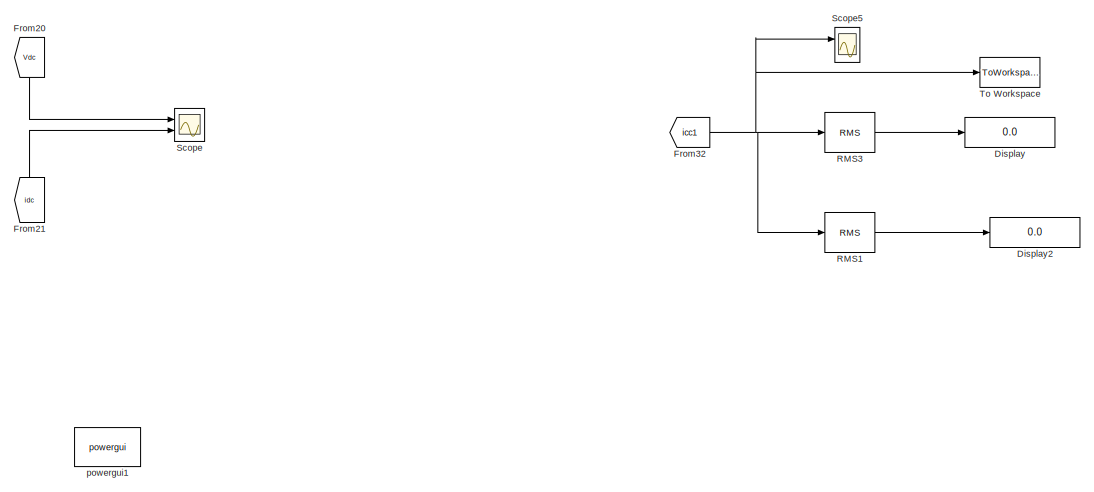
[diagram: root canvas - part 1/2, full width, top band]
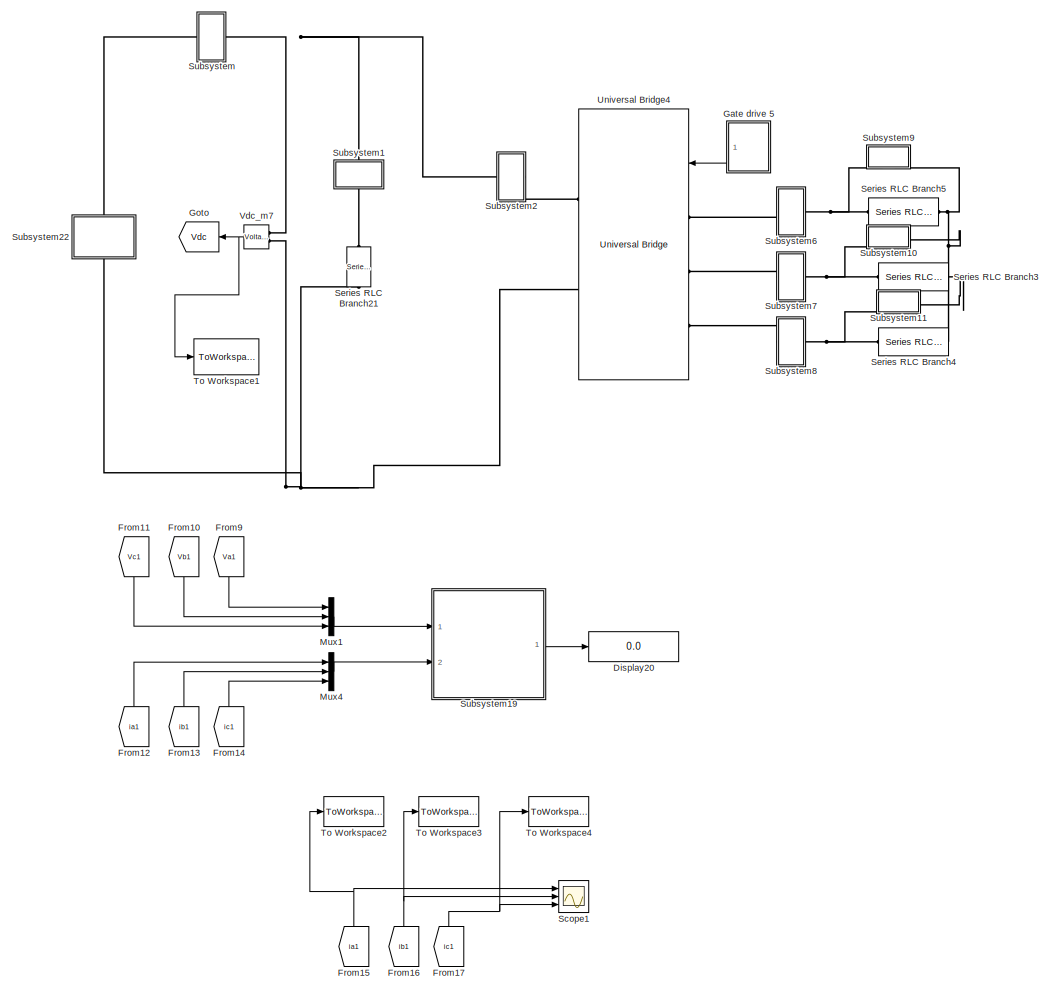
[diagram: root canvas - part 2/2, full width, bottom band]
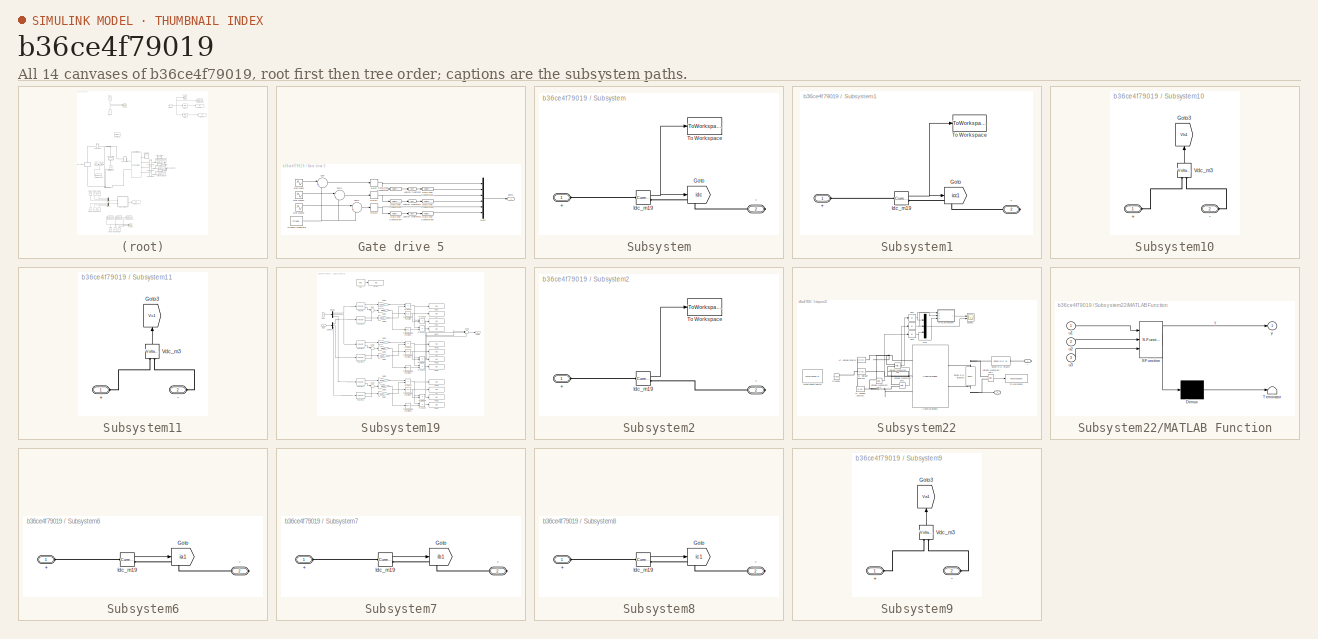
[diagram: thumbnail index - all 14 canvases of the model, root first then tree order]
MODEL slx_b36ce4f79019
KIND model
CONFIG AbsTol = auto
CONFIG FixedStep = Ts
CONFIG MaxStep = auto
CONFIG MinStep = auto
CONFIG RelTol = 1e-3
CONFIG SampleTimeConstraint = Unconstrained
CONFIG Solver = ode4
CONFIG SolverMode = Auto
CONFIG SolverName = ode4
CONFIG StartTime = 0.0
CONFIG StopTime = Tfinal
BLOCK [Display] Display
  Decimation = 1
  Ports = [1]
BLOCK [Display] Display2
  Decimation = 1
  Ports = [1]
BLOCK [Display] Display20
  Decimation = 1
  Ports = [1]
BLOCK [From] From10
  GotoTag = Vb1
  TagVisibility = global
BLOCK [From] From11
  GotoTag = Vc1
  TagVisibility = global
BLOCK [From] From12
  GotoTag = ia1
  TagVisibility = global
BLOCK [From] From13
  GotoTag = ib1
  TagVisibility = global
BLOCK [From] From14
  GotoTag = ic1
  TagVisibility = global
BLOCK [From] From15
  GotoTag = ia1
  TagVisibility = global
BLOCK [From] From16
  GotoTag = ib1
  TagVisibility = global
BLOCK [From] From17
  GotoTag = ic1
  TagVisibility = global
BLOCK [From] From20
  GotoTag = Vdc
  TagVisibility = global
BLOCK [From] From21
  GotoTag = idc
  TagVisibility = global
BLOCK [From] From32
  GotoTag = icc1
  TagVisibility = global
BLOCK [From] From9
  GotoTag = Va1
  TagVisibility = global
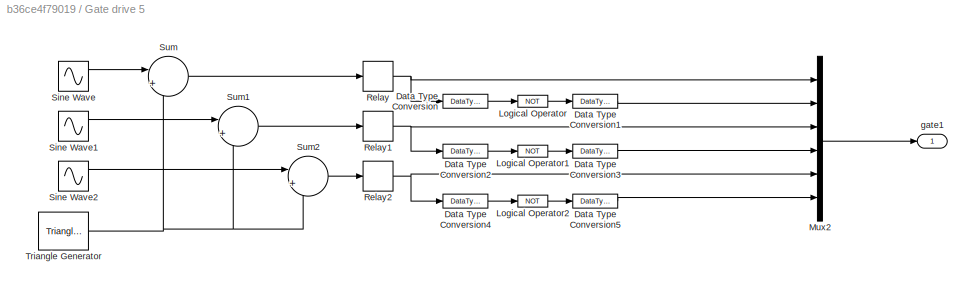
BLOCK [SubSystem] Gate drive 5
  Ports = [0, 1]
  RequestExecContextInheritance = off
  Variant = off
BLOCK [DataTypeConversion] Gate drive 5/Data Type Conversion
  OutDataTypeStr = boolean
  RndMeth = Floor
  SaturateOnIntegerOverflow = off
BLOCK [DataTypeConversion] Gate drive 5/Data Type Conversion1
  OutDataTypeStr = double
  RndMeth = Floor
  SaturateOnIntegerOverflow = off
BLOCK [DataTypeConversion] Gate drive 5/Data Type Conversion2
  OutDataTypeStr = boolean
  RndMeth = Floor
  SaturateOnIntegerOverflow = off
BLOCK [DataTypeConversion] Gate drive 5/Data Type Conversion3
  OutDataTypeStr = double
  RndMeth = Floor
  SaturateOnIntegerOverflow = off
BLOCK [DataTypeConversion] Gate drive 5/Data Type Conversion4
  OutDataTypeStr = boolean
  RndMeth = Floor
  SaturateOnIntegerOverflow = off
BLOCK [DataTypeConversion] Gate drive 5/Data Type Conversion5
  OutDataTypeStr = double
  RndMeth = Floor
  SaturateOnIntegerOverflow = off
BLOCK [Logic] Gate drive 5/Logical Operator
  AllPortsSameDT = off
  Operator = NOT
  OutDataTypeStr = boolean
  Ports = [1, 1]
BLOCK [Logic] Gate drive 5/Logical Operator1
  AllPortsSameDT = off
  Operator = NOT
  OutDataTypeStr = boolean
  Ports = [1, 1]
BLOCK [Logic] Gate drive 5/Logical Operator2
  AllPortsSameDT = off
  Operator = NOT
  OutDataTypeStr = boolean
  Ports = [1, 1]
BLOCK [Mux] Gate drive 5/Mux2
  DisplayOption = bar
  Inputs = 6
  Ports = [6, 1]
BLOCK [Relay] Gate drive 5/Relay
  InputProcessing = Elements as channels (sample based)
BLOCK [Relay] Gate drive 5/Relay1
  InputProcessing = Elements as channels (sample based)
BLOCK [Relay] Gate drive 5/Relay2
  InputProcessing = Elements as channels (sample based)
BLOCK [Sin] Gate drive 5/Sine Wave
  Amplitude = ma1
  Frequency = wout
  Phase = delta
  Ports = [0, 1]
  SampleTime = 0
BLOCK [Sin] Gate drive 5/Sine Wave1
  Amplitude = ma1
  Frequency = wout
  Phase = -2*pi/3+delta
  Ports = [0, 1]
  SampleTime = 0
BLOCK [Sin] Gate drive 5/Sine Wave2
  Amplitude = ma1
  Frequency = wout
  Phase = 2*pi/3+delta
  Ports = [0, 1]
  SampleTime = 0
BLOCK [Sum] Gate drive 5/Sum
  IconShape = round
  InputSameDT = off
  Inputs = |+-
  OutDataTypeStr = Inherit: Inherit via internal rule
  Ports = [2, 1]
  SaturateOnIntegerOverflow = off
BLOCK [Sum] Gate drive 5/Sum1
  IconShape = round
  InputSameDT = off
  Inputs = |+-
  OutDataTypeStr = Inherit: Inherit via internal rule
  Ports = [2, 1]
  SaturateOnIntegerOverflow = off
BLOCK [Sum] Gate drive 5/Sum2
  IconShape = round
  InputSameDT = off
  Inputs = |+-
  OutDataTypeStr = Inherit: Inherit via internal rule
  Ports = [2, 1]
  SaturateOnIntegerOverflow = off
BLOCK [Reference] Gate drive 5/Triangle Generator  REF=powerlib_meascontrol/Pulse & Signal
Generators/Triangle
Generator
  Ports = [0, 1]
  SourceBlock = powerlib_meascontrol/Pulse & Signal\nGenerators/Triangle\nGenerator
  SourceType = Triangle Generator
BLOCK [Outport] Gate drive 5/gate1
  IconDisplay = Port number
BLOCK [Goto] Goto
  GotoTag = Vdc
  TagVisibility = global
BLOCK [Mux] Mux1
  DisplayOption = bar
  Inputs = 3
  Ports = [3, 1]
BLOCK [Mux] Mux4
  DisplayOption = bar
  Inputs = 3
  Ports = [3, 1]
BLOCK [Reference] RMS1  REF=powerlib_meascontrol/Measurements/RMS
  Ports = [1, 1]
  SourceBlock = powerlib_meascontrol/Measurements/RMS
  SourceType = RMS
BLOCK [Reference] RMS3  REF=powerlib_meascontrol/Measurements/RMS
  Ports = [1, 1]
  SourceBlock = powerlib_meascontrol/Measurements/RMS
  SourceType = RMS
BLOCK [Scope] Scope
  NumInputPorts = 2
  Ports = [2]
  ScopeSpecificationString = Simulink.scopes.TimeScopeBlockCfg('CurrentConfiguration', extmgr.ConfigurationSet(extmgr.Configuration('Core','General UI',true),extmgr.Configuration('Core','Source UI',true),extmgr.Configuration('Sources','WiredSimulink',true,'DataLoggingVariableName','ScopeData1'),extmgr.Configuration('Visuals','Time Domain',true,'SerializedDisplays',{struct('MinYLimReal','219.15065','MaxYLimReal','272.62281','Y...<+1463ch>
BLOCK [Scope] Scope1
  NumInputPorts = 3
  Ports = [3]
  ScopeSpecificationString = Simulink.scopes.TimeScopeBlockCfg('CurrentConfiguration', extmgr.ConfigurationSet(extmgr.Configuration('Core','General UI',true),extmgr.Configuration('Core','Source UI',true),extmgr.Configuration('Sources','WiredSimulink',true,'DataLoggingVariableName','ScopeData1'),extmgr.Configuration('Visuals','Time Domain',true,'SerializedDisplays',{struct('MinYLimReal','-15.94755','MaxYLimReal','13.05251','YL...<+1441ch>
BLOCK [Scope] Scope5
  NumInputPorts = 2
  Ports = [2]
  ScopeSpecificationString = Simulink.scopes.TimeScopeBlockCfg('CurrentConfiguration', extmgr.ConfigurationSet(extmgr.Configuration('Core','General UI',true),extmgr.Configuration('Core','Source UI',true),extmgr.Configuration('Sources','WiredSimulink',true,'DataLoggingVariableName','ScopeData4'),extmgr.Configuration('Visuals','Time Domain',true,'SerializedDisplays',{struct('MinYLimReal','-40.78372','MaxYLimReal','24.3022','YLa...<+1455ch>
BLOCK [Reference] Series RLC Branch21  REF=powerlib/Elements/Series RLC Branch
  Ports = [0, 0, 0, 0, 0, 1, 1]
  SourceBlock = powerlib/Elements/Series RLC Branch
  SourceType = Series RLC Branch
BLOCK [Reference] Series RLC Branch3  REF=powerlib/Elements/Series RLC Branch
  Ports = [0, 0, 0, 0, 0, 1, 1]
  SourceBlock = powerlib/Elements/Series RLC Branch
  SourceType = Series RLC Branch
BLOCK [Reference] Series RLC Branch4  REF=powerlib/Elements/Series RLC Branch
  Ports = [0, 0, 0, 0, 0, 1, 1]
  SourceBlock = powerlib/Elements/Series RLC Branch
  SourceType = Series RLC Branch
BLOCK [Reference] Series RLC Branch5  REF=powerlib/Elements/Series RLC Branch
  Ports = [0, 0, 0, 0, 0, 1, 1]
  SourceBlock = powerlib/Elements/Series RLC Branch
  SourceType = Series RLC Branch
BLOCK [SubSystem] Subsystem
  Ports = [0, 0, 0, 0, 0, 1, 1]
  RequestExecContextInheritance = off
  Variant = off
BLOCK [PMIOPort] Subsystem/ -
  Port = 2
  Side = Right
BLOCK [PMIOPort] Subsystem/+
  Port = 1
  Side = Left
BLOCK [Goto] Subsystem/Goto
  GotoTag = idc
  TagVisibility = global
BLOCK [Reference] Subsystem/Idc_m19  REF=powerlib/Measurements/Current Measurement
  Ports = [0, 1, 0, 0, 0, 1, 1]
  SourceBlock = powerlib/Measurements/Current Measurement
  SourceType = Current Measurement
BLOCK [ToWorkspace] Subsystem/To Workspace
  FixptAsFi = on
  MaxDataPoints = inf
  Ports = [1]
  SampleTime = -1
  Save2DSignal = 3-D array (concatenate along third dimension)
  VariableName = InputCurrent_sim
BLOCK [SubSystem] Subsystem1
  Ports = [0, 0, 0, 0, 0, 1, 1]
  RequestExecContextInheritance = off
  Variant = off
BLOCK [PMIOPort] Subsystem1/ -
  Port = 2
  Side = Right
BLOCK [PMIOPort] Subsystem1/+
  Port = 1
  Side = Left
BLOCK [Goto] Subsystem1/Goto
  GotoTag = icc1
  TagVisibility = global
BLOCK [Reference] Subsystem1/Idc_m19  REF=powerlib/Measurements/Current Measurement
  Ports = [0, 1, 0, 0, 0, 1, 1]
  SourceBlock = powerlib/Measurements/Current Measurement
  SourceType = Current Measurement
BLOCK [ToWorkspace] Subsystem1/To Workspace
  FixptAsFi = on
  MaxDataPoints = inf
  Ports = [1]
  SampleTime = -1
  Save2DSignal = 3-D array (concatenate along third dimension)
  SaveFormat = Timeseries
  VariableName = currentCap_sim
BLOCK [SubSystem] Subsystem10
  Ports = [0, 0, 0, 0, 0, 2]
  RequestExecContextInheritance = off
  Variant = off
BLOCK [PMIOPort] Subsystem10/+
  Port = 1
  Side = Left
BLOCK [PMIOPort] Subsystem10/-
  Port = 2
  Side = Left
BLOCK [Goto] Subsystem10/Goto3
  GotoTag = Vb1
  TagVisibility = global
BLOCK [Reference] Subsystem10/Vdc_m3  REF=powerlib/Measurements/Voltage Measurement
  Ports = [0, 1, 0, 0, 0, 2]
  SourceBlock = powerlib/Measurements/Voltage Measurement
  SourceType = Voltage Measurement
BLOCK [SubSystem] Subsystem11
  Ports = [0, 0, 0, 0, 0, 2]
  RequestExecContextInheritance = off
  Variant = off
BLOCK [PMIOPort] Subsystem11/+
  Port = 1
  Side = Left
BLOCK [PMIOPort] Subsystem11/-
  Port = 2
  Side = Left
BLOCK [Goto] Subsystem11/Goto3
  GotoTag = Vc1
  TagVisibility = global
BLOCK [Reference] Subsystem11/Vdc_m3  REF=powerlib/Measurements/Voltage Measurement
  Ports = [0, 1, 0, 0, 0, 2]
  SourceBlock = powerlib/Measurements/Voltage Measurement
  SourceType = Voltage Measurement
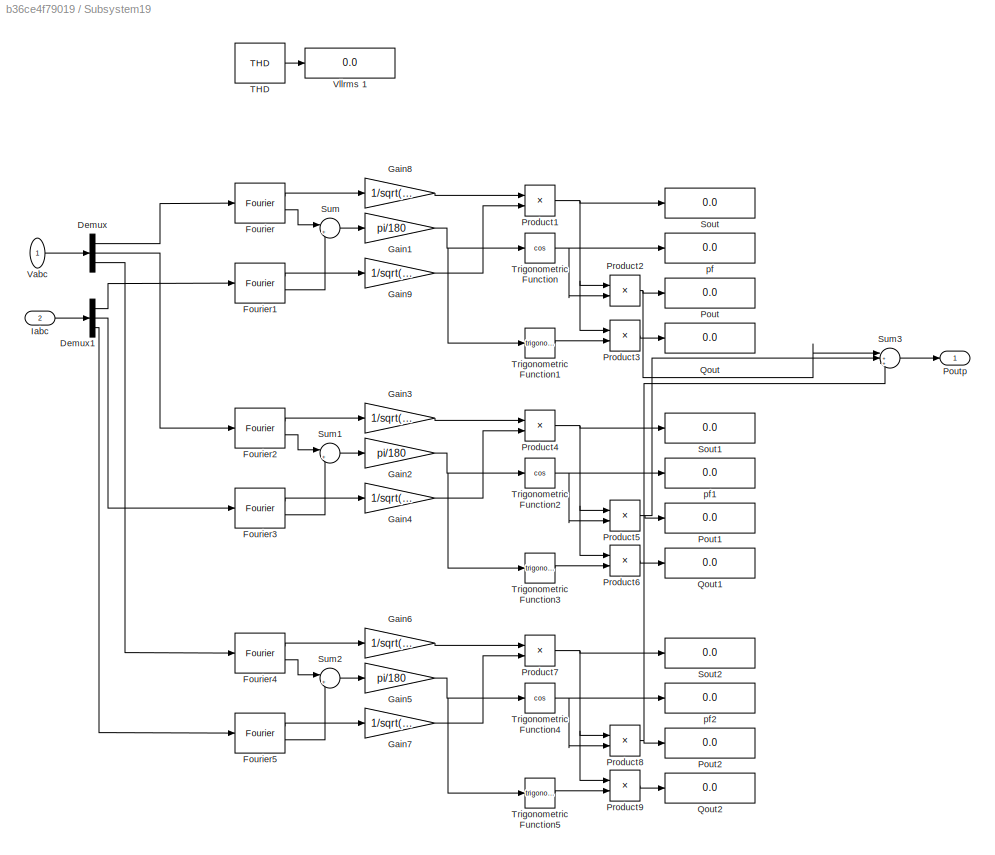
BLOCK [SubSystem] Subsystem19
  Ports = [2, 1]
  RequestExecContextInheritance = off
  Variant = off
BLOCK [Demux] Subsystem19/Demux
  DisplayOption = bar
  Outputs = 3
  Ports = [1, 3]
BLOCK [Demux] Subsystem19/Demux1
  DisplayOption = bar
  Outputs = 3
  Ports = [1, 3]
BLOCK [Reference] Subsystem19/Fourier  REF=powerlib_meascontrol/Measurements/Fourier
  Ports = [1, 2]
  SourceBlock = powerlib_meascontrol/Measurements/Fourier
  SourceType = Fourier
BLOCK [Reference] Subsystem19/Fourier1  REF=powerlib_meascontrol/Measurements/Fourier
  Ports = [1, 2]
  SourceBlock = powerlib_meascontrol/Measurements/Fourier
  SourceType = Fourier
BLOCK [Reference] Subsystem19/Fourier2  REF=powerlib_meascontrol/Measurements/Fourier
  Ports = [1, 2]
  SourceBlock = powerlib_meascontrol/Measurements/Fourier
  SourceType = Fourier
BLOCK [Reference] Subsystem19/Fourier3  REF=powerlib_meascontrol/Measurements/Fourier
  Ports = [1, 2]
  SourceBlock = powerlib_meascontrol/Measurements/Fourier
  SourceType = Fourier
BLOCK [Reference] Subsystem19/Fourier4  REF=powerlib_meascontrol/Measurements/Fourier
  Ports = [1, 2]
  SourceBlock = powerlib_meascontrol/Measurements/Fourier
  SourceType = Fourier
BLOCK [Reference] Subsystem19/Fourier5  REF=powerlib_meascontrol/Measurements/Fourier
  Ports = [1, 2]
  SourceBlock = powerlib_meascontrol/Measurements/Fourier
  SourceType = Fourier
BLOCK [Gain] Subsystem19/Gain1
  Gain = pi/180
  OutDataTypeStr = Inherit: Inherit via internal rule
  ParamDataTypeStr = Inherit: Inherit via internal rule
  SaturateOnIntegerOverflow = off
BLOCK [Gain] Subsystem19/Gain2
  Gain = pi/180
  OutDataTypeStr = Inherit: Inherit via internal rule
  ParamDataTypeStr = Inherit: Inherit via internal rule
  SaturateOnIntegerOverflow = off
BLOCK [Gain] Subsystem19/Gain3
  Gain = 1/sqrt(2)
  OutDataTypeStr = Inherit: Inherit via internal rule
  ParamDataTypeStr = Inherit: Inherit via internal rule
  SaturateOnIntegerOverflow = off
BLOCK [Gain] Subsystem19/Gain4
  Gain = 1/sqrt(2)
  OutDataTypeStr = Inherit: Inherit via internal rule
  ParamDataTypeStr = Inherit: Inherit via internal rule
  SaturateOnIntegerOverflow = off
BLOCK [Gain] Subsystem19/Gain5
  Gain = pi/180
  OutDataTypeStr = Inherit: Inherit via internal rule
  ParamDataTypeStr = Inherit: Inherit via internal rule
  SaturateOnIntegerOverflow = off
BLOCK [Gain] Subsystem19/Gain6
  Gain = 1/sqrt(2)
  OutDataTypeStr = Inherit: Inherit via internal rule
  ParamDataTypeStr = Inherit: Inherit via internal rule
  SaturateOnIntegerOverflow = off
BLOCK [Gain] Subsystem19/Gain7
  Gain = 1/sqrt(2)
  OutDataTypeStr = Inherit: Inherit via internal rule
  ParamDataTypeStr = Inherit: Inherit via internal rule
  SaturateOnIntegerOverflow = off
BLOCK [Gain] Subsystem19/Gain8
  Gain = 1/sqrt(2)
  OutDataTypeStr = Inherit: Inherit via internal rule
  ParamDataTypeStr = Inherit: Inherit via internal rule
  SaturateOnIntegerOverflow = off
BLOCK [Gain] Subsystem19/Gain9
  Gain = 1/sqrt(2)
  OutDataTypeStr = Inherit: Inherit via internal rule
  ParamDataTypeStr = Inherit: Inherit via internal rule
  SaturateOnIntegerOverflow = off
BLOCK [Inport] Subsystem19/Iabc
  IconDisplay = Port number
  Port = 2
BLOCK [Display] Subsystem19/Pout
  Decimation = 1
  Ports = [1]
BLOCK [Display] Subsystem19/Pout1
  Decimation = 1
  Ports = [1]
BLOCK [Display] Subsystem19/Pout2
  Decimation = 1
  Ports = [1]
BLOCK [Outport] Subsystem19/Poutp
  IconDisplay = Port number
BLOCK [Product] Subsystem19/Product1
  InputSameDT = off
  OutDataTypeStr = Inherit: Inherit via internal rule
  Ports = [2, 1]
  RndMeth = Floor
  SaturateOnIntegerOverflow = off
BLOCK [Product] Subsystem19/Product2
  InputSameDT = off
  OutDataTypeStr = Inherit: Inherit via internal rule
  Ports = [2, 1]
  RndMeth = Floor
  SaturateOnIntegerOverflow = off
BLOCK [Product] Subsystem19/Product3
  InputSameDT = off
  OutDataTypeStr = Inherit: Inherit via internal rule
  Ports = [2, 1]
  RndMeth = Floor
  SaturateOnIntegerOverflow = off
BLOCK [Product] Subsystem19/Product4
  InputSameDT = off
  OutDataTypeStr = Inherit: Inherit via internal rule
  Ports = [2, 1]
  RndMeth = Floor
  SaturateOnIntegerOverflow = off
BLOCK [Product] Subsystem19/Product5
  InputSameDT = off
  OutDataTypeStr = Inherit: Inherit via internal rule
  Ports = [2, 1]
  RndMeth = Floor
  SaturateOnIntegerOverflow = off
BLOCK [Product] Subsystem19/Product6
  InputSameDT = off
  OutDataTypeStr = Inherit: Inherit via internal rule
  Ports = [2, 1]
  RndMeth = Floor
  SaturateOnIntegerOverflow = off
BLOCK [Product] Subsystem19/Product7
  InputSameDT = off
  OutDataTypeStr = Inherit: Inherit via internal rule
  Ports = [2, 1]
  RndMeth = Floor
  SaturateOnIntegerOverflow = off
BLOCK [Product] Subsystem19/Product8
  InputSameDT = off
  OutDataTypeStr = Inherit: Inherit via internal rule
  Ports = [2, 1]
  RndMeth = Floor
  SaturateOnIntegerOverflow = off
BLOCK [Product] Subsystem19/Product9
  InputSameDT = off
  OutDataTypeStr = Inherit: Inherit via internal rule
  Ports = [2, 1]
  RndMeth = Floor
  SaturateOnIntegerOverflow = off
BLOCK [Display] Subsystem19/Qout
  Decimation = 1
  Ports = [1]
BLOCK [Display] Subsystem19/Qout1
  Decimation = 1
  Ports = [1]
BLOCK [Display] Subsystem19/Qout2
  Decimation = 1
  Ports = [1]
BLOCK [Display] Subsystem19/Sout
  Decimation = 1
  Format = short_e
  Ports = [1]
BLOCK [Display] Subsystem19/Sout1
  Decimation = 1
  Format = short_e
  Ports = [1]
BLOCK [Display] Subsystem19/Sout2
  Decimation = 1
  Format = short_e
  Ports = [1]
BLOCK [Sum] Subsystem19/Sum
  IconShape = round
  InputSameDT = off
  Inputs = |+-
  OutDataTypeStr = Inherit: Inherit via internal rule
  Ports = [2, 1]
  SaturateOnIntegerOverflow = off
BLOCK [Sum] Subsystem19/Sum1
  IconShape = round
  InputSameDT = off
  Inputs = |+-
  OutDataTypeStr = Inherit: Inherit via internal rule
  Ports = [2, 1]
  SaturateOnIntegerOverflow = off
BLOCK [Sum] Subsystem19/Sum2
  IconShape = round
  InputSameDT = off
  Inputs = |+-
  OutDataTypeStr = Inherit: Inherit via internal rule
  Ports = [2, 1]
  SaturateOnIntegerOverflow = off
BLOCK [Sum] Subsystem19/Sum3
  IconShape = round
  InputSameDT = off
  Inputs = |+++
  OutDataTypeStr = Inherit: Inherit via internal rule
  Ports = [3, 1]
  SaturateOnIntegerOverflow = off
BLOCK [Reference] Subsystem19/THD  REF=powerlib_meascontrol/Measurements/THD
  Ports = [1, 1]
  SourceBlock = powerlib_meascontrol/Measurements/THD
  SourceType = THD
BLOCK [Trigonometry] Subsystem19/Trigonometric Function
  Operator = cos
  Ports = [1, 1]
BLOCK [Trigonometry] Subsystem19/Trigonometric Function1
  Ports = [1, 1]
BLOCK [Trigonometry] Subsystem19/Trigonometric Function2
  Operator = cos
  Ports = [1, 1]
BLOCK [Trigonometry] Subsystem19/Trigonometric Function3
  Ports = [1, 1]
BLOCK [Trigonometry] Subsystem19/Trigonometric Function4
  Operator = cos
  Ports = [1, 1]
BLOCK [Trigonometry] Subsystem19/Trigonometric Function5
  Ports = [1, 1]
BLOCK [Inport] Subsystem19/Vabc
  IconDisplay = Port number
BLOCK [Display] Subsystem19/Vllrms 1
  Decimation = 1
  Ports = [1]
BLOCK [Display] Subsystem19/pf
  Decimation = 1
  Ports = [1]
BLOCK [Display] Subsystem19/pf1
  Decimation = 1
  Ports = [1]
BLOCK [Display] Subsystem19/pf2
  Decimation = 1
  Ports = [1]
BLOCK [SubSystem] Subsystem2
  Ports = [0, 0, 0, 0, 0, 1, 1]
  RequestExecContextInheritance = off
  Variant = off
BLOCK [PMIOPort] Subsystem2/ -
  Port = 2
  Side = Right
BLOCK [PMIOPort] Subsystem2/+
  Port = 1
  Side = Left
BLOCK [Reference] Subsystem2/Idc_m19  REF=powerlib/Measurements/Current Measurement
  Ports = [0, 1, 0, 0, 0, 1, 1]
  SourceBlock = powerlib/Measurements/Current Measurement
  SourceType = Current Measurement
BLOCK [ToWorkspace] Subsystem2/To Workspace
  FixptAsFi = on
  MaxDataPoints = inf
  Ports = [1]
  SampleTime = -1
  Save2DSignal = 3-D array (concatenate along third dimension)
  SaveFormat = Timeseries
  VariableName = currentInverter_sim
BLOCK [SubSystem] Subsystem22
  Ports = [0, 0, 0, 0, 0, 1, 1]
  RequestExecContextInheritance = off
  Variant = off
BLOCK [PMIOPort] Subsystem22/+
  Port = 1
  Side = Right
BLOCK [PMIOPort] Subsystem22/-
  Port = 2
  Side = Left
BLOCK [Reference] Subsystem22/AC Voltage Source  REF=powerlib/Electrical
Sources/AC Voltage Source
  Ports = [0, 0, 0, 0, 0, 1, 1]
  SourceBlock = powerlib/Electrical\nSources/AC Voltage Source
  SourceType = AC Voltage Source
BLOCK [Reference] Subsystem22/AC Voltage Source2  REF=powerlib/Electrical
Sources/AC Voltage Source
  Ports = [0, 0, 0, 0, 0, 1, 1]
  SourceBlock = powerlib/Electrical\nSources/AC Voltage Source
  SourceType = AC Voltage Source
BLOCK [Reference] Subsystem22/AC Voltage Source3  REF=powerlib/Electrical
Sources/AC Voltage Source
  Ports = [0, 0, 0, 0, 0, 1, 1]
  SourceBlock = powerlib/Electrical\nSources/AC Voltage Source
  SourceType = AC Voltage Source
BLOCK [Abs] Subsystem22/Abs1
  SaturateOnIntegerOverflow = off
BLOCK [Abs] Subsystem22/Abs2
  SaturateOnIntegerOverflow = off
BLOCK [Abs] Subsystem22/Abs3
  SaturateOnIntegerOverflow = off
BLOCK [Reference] Subsystem22/Ground1  REF=powerlib/Elements/Ground
  Ports = [0, 0, 0, 0, 0, 1]
  SourceBlock = powerlib/Elements/Ground
  SourceType = Ground
BLOCK [SubSystem] Subsystem22/MATLAB Function
  ErrorFcn = Stateflow.Translate.translate
  PermitHierarchicalResolution = ExplicitOnly
  Ports = [3, 1]
  RequestExecContextInheritance = off
  SFBlockType = MATLAB Function
  TreatAsAtomicUnit = on
  Variant = off
BLOCK [Demux] Subsystem22/MATLAB Function/ Demux 
  Outputs = 1
  Ports = [1, 1]
BLOCK [S-Function] Subsystem22/MATLAB Function/ SFunction 
  EnableBusSupport = on
  FunctionName = sf_sfun
  PortCounts = [3 2]
  Ports = [3, 2]
  SFunctionDeploymentMode = off
  Tag = Stateflow S-Function VerificationSSMRec2016A 2
BLOCK [Terminator] Subsystem22/MATLAB Function/ Terminator 
BLOCK [Inport] Subsystem22/MATLAB Function/u1
  IconDisplay = Port number
BLOCK [Inport] Subsystem22/MATLAB Function/u2
  IconDisplay = Port number
  Port = 2
BLOCK [Inport] Subsystem22/MATLAB Function/u3
  IconDisplay = Port number
  Port = 3
BLOCK [Outport] Subsystem22/MATLAB Function/y
  IconDisplay = Port number
BLOCK [Mux] Subsystem22/Mux
  DisplayOption = bar
  Inputs = 3
  Ports = [3, 1]
BLOCK [Scope] Subsystem22/Scope1
  NumInputPorts = 2
  Ports = [2]
  ScopeSpecificationString = Simulink.scopes.TimeScopeBlockCfg('CurrentConfiguration', extmgr.ConfigurationSet(extmgr.Configuration('Core','General UI',true),extmgr.Configuration('Core','Source UI',true),extmgr.Configuration('Sources','WiredSimulink',true,'DataLoggingVariableName','ScopeData1'),extmgr.Configuration('Visuals','Time Domain',true,'SerializedDisplays',{struct('MinYLimReal','-16.25','MaxYLimReal','146.25','YLabelR...<+1439ch>
BLOCK [Reference] Subsystem22/Series RLC Branch  REF=powerlib/Elements/Series RLC Branch
  Ports = [0, 0, 0, 0, 0, 1, 1]
  SourceBlock = powerlib/Elements/Series RLC Branch
  SourceType = Series RLC Branch
BLOCK [Reference] Subsystem22/Series RLC Branch5  REF=powerlib/Elements/Series RLC Branch
  Ports = [0, 0, 0, 0, 0, 1, 1]
  SourceBlock = powerlib/Elements/Series RLC Branch
  SourceType = Series RLC Branch
BLOCK [Reference] Subsystem22/Three-Phase Source  REF=powerlib/Electrical
Sources/Three-Phase Source
  Commented = on
  Ports = [0, 0, 0, 0, 0, 0, 3]
  SourceBlock = powerlib/Electrical\nSources/Three-Phase Source
  SourceType = Three-Phase Source
BLOCK [ToWorkspace] Subsystem22/To Workspace
  FixptAsFi = on
  MaxDataPoints = inf
  Ports = [1]
  SampleTime = -1
  Save2DSignal = 3-D array (concatenate along third dimension)
  SaveFormat = Timeseries
  VariableName = InputVoltage_sim
BLOCK [Reference] Subsystem22/Universal Bridge1  REF=powerlib/Power
Electronics/Universal Bridge
  Ports = [0, 0, 0, 0, 0, 3, 2]
  SourceBlock = powerlib/Power\nElectronics/Universal Bridge
  SourceType = Universal Bridge
BLOCK [Reference] Subsystem22/Voltage Measurement  REF=powerlib/Measurements/Voltage Measurement
  Ports = [0, 1, 0, 0, 0, 2]
  SourceBlock = powerlib/Measurements/Voltage Measurement
  SourceType = Voltage Measurement
  UserDataPersistent = on
BLOCK [Reference] Subsystem22/Voltage Measurement1  REF=powerlib/Measurements/Voltage Measurement
  Ports = [0, 1, 0, 0, 0, 2]
  SourceBlock = powerlib/Measurements/Voltage Measurement
  SourceType = Voltage Measurement
  UserDataPersistent = on
BLOCK [Reference] Subsystem22/Voltage Measurement2  REF=powerlib/Measurements/Voltage Measurement
  Ports = [0, 1, 0, 0, 0, 2]
  SourceBlock = powerlib/Measurements/Voltage Measurement
  SourceType = Voltage Measurement
  UserDataPersistent = on
BLOCK [Reference] Subsystem22/Voltage Measurement3  REF=powerlib/Measurements/Voltage Measurement
  Ports = [0, 1, 0, 0, 0, 2]
  SourceBlock = powerlib/Measurements/Voltage Measurement
  SourceType = Voltage Measurement
  UserDataPersistent = on
BLOCK [SubSystem] Subsystem6
  Ports = [0, 0, 0, 0, 0, 1, 1]
  RequestExecContextInheritance = off
  Variant = off
BLOCK [PMIOPort] Subsystem6/ -
  Port = 2
  Side = Right
BLOCK [PMIOPort] Subsystem6/+
  Port = 1
  Side = Left
BLOCK [Goto] Subsystem6/Goto
  GotoTag = ia1
  TagVisibility = global
BLOCK [Reference] Subsystem6/Idc_m19  REF=powerlib/Measurements/Current Measurement
  Ports = [0, 1, 0, 0, 0, 1, 1]
  SourceBlock = powerlib/Measurements/Current Measurement
  SourceType = Current Measurement
BLOCK [SubSystem] Subsystem7
  Ports = [0, 0, 0, 0, 0, 1, 1]
  RequestExecContextInheritance = off
  Variant = off
BLOCK [PMIOPort] Subsystem7/ -
  Port = 2
  Side = Right
BLOCK [PMIOPort] Subsystem7/+
  Port = 1
  Side = Left
BLOCK [Goto] Subsystem7/Goto
  GotoTag = ib1
  TagVisibility = global
BLOCK [Reference] Subsystem7/Idc_m19  REF=powerlib/Measurements/Current Measurement
  Ports = [0, 1, 0, 0, 0, 1, 1]
  SourceBlock = powerlib/Measurements/Current Measurement
  SourceType = Current Measurement
BLOCK [SubSystem] Subsystem8
  Ports = [0, 0, 0, 0, 0, 1, 1]
  RequestExecContextInheritance = off
  Variant = off
BLOCK [PMIOPort] Subsystem8/ -
  Port = 2
  Side = Right
BLOCK [PMIOPort] Subsystem8/+
  Port = 1
  Side = Left
BLOCK [Goto] Subsystem8/Goto
  GotoTag = ic1
  TagVisibility = global
BLOCK [Reference] Subsystem8/Idc_m19  REF=powerlib/Measurements/Current Measurement
  Ports = [0, 1, 0, 0, 0, 1, 1]
  SourceBlock = powerlib/Measurements/Current Measurement
  SourceType = Current Measurement
BLOCK [SubSystem] Subsystem9
  Ports = [0, 0, 0, 0, 0, 2]
  RequestExecContextInheritance = off
  Variant = off
BLOCK [PMIOPort] Subsystem9/+
  Port = 1
  Side = Left
BLOCK [PMIOPort] Subsystem9/-
  Port = 2
  Side = Left
BLOCK [Goto] Subsystem9/Goto3
  GotoTag = Va1
  TagVisibility = global
BLOCK [Reference] Subsystem9/Vdc_m3  REF=powerlib/Measurements/Voltage Measurement
  Ports = [0, 1, 0, 0, 0, 2]
  SourceBlock = powerlib/Measurements/Voltage Measurement
  SourceType = Voltage Measurement
BLOCK [ToWorkspace] To Workspace
  FixptAsFi = on
  MaxDataPoints = inf
  Ports = [1]
  SampleTime = -1
  Save2DSignal = 3-D array (concatenate along third dimension)
  SaveFormat = Timeseries
  VariableName = ic
BLOCK [ToWorkspace] To Workspace1
  FixptAsFi = on
  MaxDataPoints = inf
  Ports = [1]
  SampleTime = -1
  Save2DSignal = 3-D array (concatenate along third dimension)
  SaveFormat = Timeseries
  VariableName = CapacitorVoltage_sim
BLOCK [ToWorkspace] To Workspace2
  FixptAsFi = on
  MaxDataPoints = inf
  Ports = [1]
  SampleTime = -1
  Save2DSignal = 3-D array (concatenate along third dimension)
  SaveFormat = Timeseries
  VariableName = currentPhaseA_sim
BLOCK [ToWorkspace] To Workspace3
  FixptAsFi = on
  MaxDataPoints = inf
  Ports = [1]
  SampleTime = -1
  Save2DSignal = 3-D array (concatenate along third dimension)
  SaveFormat = Timeseries
  VariableName = currentPhaseB_sim
BLOCK [ToWorkspace] To Workspace4
  FixptAsFi = on
  MaxDataPoints = inf
  Ports = [1]
  SampleTime = -1
  Save2DSignal = 3-D array (concatenate along third dimension)
  SaveFormat = Timeseries
  VariableName = currentPhaseC_sim
BLOCK [Reference] Universal Bridge4  REF=powerlib/Power
Electronics/Universal Bridge
  Ports = [1, 0, 0, 0, 0, 3, 2]
  SourceBlock = powerlib/Power\nElectronics/Universal Bridge
  SourceType = Universal Bridge
BLOCK [Reference] Vdc_m7  REF=powerlib/Measurements/Voltage Measurement
  Ports = [0, 1, 0, 0, 0, 2]
  SourceBlock = powerlib/Measurements/Voltage Measurement
  SourceType = Voltage Measurement
BLOCK [Reference] powergui1  REF=powerlib/powergui
  Ports = []
  Priority = 1
  SourceBlock = powerlib/powergui
  SourceType = PSB option menu block
LINE From10:1 -> Mux1:2
LINE From11:1 -> Mux1:3
LINE From12:1 -> Mux4:1
LINE From13:1 -> Mux4:2
LINE From14:1 -> Mux4:3
NET From15:1 -> Scope1:1, To Workspace2:1
NET From16:1 -> Scope1:2, To Workspace3:1
NET From17:1 -> Scope1:3, To Workspace4:1
LINE From20:1 -> Scope:1
LINE From21:1 -> Scope:2
NET From32:1 -> RMS1:1, RMS3:1, Scope5:1, To Workspace:1
LINE From9:1 -> Mux1:1
LINE Gate drive 5/Data Type Conversion1:1 -> Gate drive 5/Mux2:2
LINE Gate drive 5/Data Type Conversion2:1 -> Gate drive 5/Logical Operator1:1
LINE Gate drive 5/Data Type Conversion3:1 -> Gate drive 5/Mux2:4
LINE Gate drive 5/Data Type Conversion4:1 -> Gate drive 5/Logical Operator2:1
LINE Gate drive 5/Data Type Conversion5:1 -> Gate drive 5/Mux2:6
LINE Gate drive 5/Data Type Conversion:1 -> Gate drive 5/Logical Operator:1
LINE Gate drive 5/Logical Operator1:1 -> Gate drive 5/Data Type Conversion3:1
LINE Gate drive 5/Logical Operator2:1 -> Gate drive 5/Data Type Conversion5:1
LINE Gate drive 5/Logical Operator:1 -> Gate drive 5/Data Type Conversion1:1
LINE Gate drive 5/Mux2:1 -> Gate drive 5/gate1:1
NET Gate drive 5/Relay1:1 -> Gate drive 5/Data Type Conversion2:1, Gate drive 5/Mux2:3
NET Gate drive 5/Relay2:1 -> Gate drive 5/Data Type Conversion4:1, Gate drive 5/Mux2:5
NET Gate drive 5/Relay:1 -> Gate drive 5/Data Type Conversion:1, Gate drive 5/Mux2:1
LINE Gate drive 5/Sine Wave1:1 -> Gate drive 5/Sum1:1
LINE Gate drive 5/Sine Wave2:1 -> Gate drive 5/Sum2:1
LINE Gate drive 5/Sine Wave:1 -> Gate drive 5/Sum:1
LINE Gate drive 5/Sum1:1 -> Gate drive 5/Relay1:1
LINE Gate drive 5/Sum2:1 -> Gate drive 5/Relay2:1
LINE Gate drive 5/Sum:1 -> Gate drive 5/Relay:1
NET Gate drive 5/Triangle Generator:1 -> Gate drive 5/Sum1:2, Gate drive 5/Sum2:2, Gate drive 5/Sum:2
LINE Gate drive 5:1 -> Universal Bridge4:1
LINE Mux1:1 -> Subsystem19:1
LINE Mux4:1 -> Subsystem19:2
LINE RMS1:1 -> Display2:1
LINE RMS3:1 -> Display:1
NET Subsystem/Idc_m19:1 -> Subsystem/Goto:1, Subsystem/To Workspace:1
NET Subsystem1/Idc_m19:1 -> Subsystem1/Goto:1, Subsystem1/To Workspace:1
LINE Subsystem10/Vdc_m3:1 -> Subsystem10/Goto3:1
LINE Subsystem11/Vdc_m3:1 -> Subsystem11/Goto3:1
LINE Subsystem19/Demux1:1 -> Subsystem19/Fourier1:1
LINE Subsystem19/Demux1:2 -> Subsystem19/Fourier3:1
LINE Subsystem19/Demux1:3 -> Subsystem19/Fourier5:1
LINE Subsystem19/Demux:1 -> Subsystem19/Fourier:1
LINE Subsystem19/Demux:2 -> Subsystem19/Fourier2:1
LINE Subsystem19/Demux:3 -> Subsystem19/Fourier4:1
LINE Subsystem19/Fourier1:1 -> Subsystem19/Gain9:1
LINE Subsystem19/Fourier1:2 -> Subsystem19/Sum:2
LINE Subsystem19/Fourier2:1 -> Subsystem19/Gain3:1
LINE Subsystem19/Fourier2:2 -> Subsystem19/Sum1:1
LINE Subsystem19/Fourier3:1 -> Subsystem19/Gain4:1
LINE Subsystem19/Fourier3:2 -> Subsystem19/Sum1:2
LINE Subsystem19/Fourier4:1 -> Subsystem19/Gain6:1
LINE Subsystem19/Fourier4:2 -> Subsystem19/Sum2:1
LINE Subsystem19/Fourier5:1 -> Subsystem19/Gain7:1
LINE Subsystem19/Fourier5:2 -> Subsystem19/Sum2:2
LINE Subsystem19/Fourier:1 -> Subsystem19/Gain8:1
LINE Subsystem19/Fourier:2 -> Subsystem19/Sum:1
NET Subsystem19/Gain1:1 -> Subsystem19/Trigonometric Function1:1, Subsystem19/Trigonometric Function:1
NET Subsystem19/Gain2:1 -> Subsystem19/Trigonometric Function2:1, Subsystem19/Trigonometric Function3:1
LINE Subsystem19/Gain3:1 -> Subsystem19/Product4:1
LINE Subsystem19/Gain4:1 -> Subsystem19/Product4:2
NET Subsystem19/Gain5:1 -> Subsystem19/Trigonometric Function4:1, Subsystem19/Trigonometric Function5:1
LINE Subsystem19/Gain6:1 -> Subsystem19/Product7:1
LINE Subsystem19/Gain7:1 -> Subsystem19/Product7:2
LINE Subsystem19/Gain8:1 -> Subsystem19/Product1:1
LINE Subsystem19/Gain9:1 -> Subsystem19/Product1:2
LINE Subsystem19/Iabc:1 -> Subsystem19/Demux1:1
NET Subsystem19/Product1:1 -> Subsystem19/Product2:1, Subsystem19/Product3:1, Subsystem19/Sout:1
NET Subsystem19/Product2:1 -> Subsystem19/Pout:1, Subsystem19/Sum3:1
LINE Subsystem19/Product3:1 -> Subsystem19/Qout:1
NET Subsystem19/Product4:1 -> Subsystem19/Product5:1, Subsystem19/Product6:1, Subsystem19/Sout1:1
NET Subsystem19/Product5:1 -> Subsystem19/Pout1:1, Subsystem19/Sum3:2
LINE Subsystem19/Product6:1 -> Subsystem19/Qout1:1
NET Subsystem19/Product7:1 -> Subsystem19/Product8:1, Subsystem19/Product9:1, Subsystem19/Sout2:1
NET Subsystem19/Product8:1 -> Subsystem19/Pout2:1, Subsystem19/Sum3:3
LINE Subsystem19/Product9:1 -> Subsystem19/Qout2:1
LINE Subsystem19/Sum1:1 -> Subsystem19/Gain2:1
LINE Subsystem19/Sum2:1 -> Subsystem19/Gain5:1
LINE Subsystem19/Sum3:1 -> Subsystem19/Poutp:1
LINE Subsystem19/Sum:1 -> Subsystem19/Gain1:1
LINE Subsystem19/THD:1 -> Subsystem19/Vllrms 1:1
LINE Subsystem19/Trigonometric Function1:1 -> Subsystem19/Product3:2
NET Subsystem19/Trigonometric Function2:1 -> Subsystem19/Product5:2, Subsystem19/pf1:1
LINE Subsystem19/Trigonometric Function3:1 -> Subsystem19/Product6:2
NET Subsystem19/Trigonometric Function4:1 -> Subsystem19/Product8:2, Subsystem19/pf2:1
LINE Subsystem19/Trigonometric Function5:1 -> Subsystem19/Product9:2
NET Subsystem19/Trigonometric Function:1 -> Subsystem19/Product2:2, Subsystem19/pf:1
LINE Subsystem19/Vabc:1 -> Subsystem19/Demux:1
LINE Subsystem19:1 -> Display20:1
LINE Subsystem2/Idc_m19:1 -> Subsystem2/To Workspace:1
NET Subsystem22/Abs1:1 -> Subsystem22/MATLAB Function:1, Subsystem22/Mux:1
NET Subsystem22/Abs2:1 -> Subsystem22/MATLAB Function:2, Subsystem22/Mux:2
NET Subsystem22/Abs3:1 -> Subsystem22/MATLAB Function:3, Subsystem22/Mux:3
LINE Subsystem22/MATLAB Function:1 -> Subsystem22/Scope1:1
LINE Subsystem22/Mux:1 -> Subsystem22/Scope1:2
LINE Subsystem22/Voltage Measurement1:1 -> Subsystem22/To Workspace:1
LINE Subsystem22/Voltage Measurement2:1 -> Subsystem22/Abs2:1
LINE Subsystem22/Voltage Measurement3:1 -> Subsystem22/Abs3:1
LINE Subsystem22/Voltage Measurement:1 -> Subsystem22/Abs1:1
LINE Subsystem6/Idc_m19:1 -> Subsystem6/Goto:1
LINE Subsystem7/Idc_m19:1 -> Subsystem7/Goto:1
LINE Subsystem8/Idc_m19:1 -> Subsystem8/Goto:1
LINE Subsystem9/Vdc_m3:1 -> Subsystem9/Goto3:1
NET Vdc_m7:1 -> Goto:1, To Workspace1:1
PLINE Series RLC Branch21:LConn1 -- Subsystem1:RConn1
PNET net1: Series RLC Branch21:RConn1 -- Subsystem22:LConn1 -- Universal Bridge4:RConn2 -- Vdc_m7:LConn2
PNET net2: Series RLC Branch3:LConn1 -- Subsystem10:LConn1 -- Subsystem7:RConn1
PNET net3: Series RLC Branch3:RConn1 -- Series RLC Branch4:RConn1 -- Series RLC Branch5:RConn1 -- Subsystem10:LConn2 -- Subsystem11:LConn2 -- Subsystem9:LConn2
PNET net4: Series RLC Branch4:LConn1 -- Subsystem11:LConn1 -- Subsystem8:RConn1
PNET net5: Series RLC Branch5:LConn1 -- Subsystem6:RConn1 -- Subsystem9:LConn1
PLINE Subsystem/ -:RConn1 -- Subsystem/Idc_m19:RConn1
PLINE Subsystem/+:RConn1 -- Subsystem/Idc_m19:LConn1
PLINE Subsystem1/ -:RConn1 -- Subsystem1/Idc_m19:RConn1
PLINE Subsystem1/+:RConn1 -- Subsystem1/Idc_m19:LConn1
PLINE Subsystem10/+:RConn1 -- Subsystem10/Vdc_m3:LConn1
PLINE Subsystem10/-:RConn1 -- Subsystem10/Vdc_m3:LConn2
PLINE Subsystem11/+:RConn1 -- Subsystem11/Vdc_m3:LConn1
PLINE Subsystem11/-:RConn1 -- Subsystem11/Vdc_m3:LConn2
PNET net6: Subsystem1:LConn1 -- Subsystem2:LConn1 -- Subsystem:RConn1 -- Vdc_m7:LConn1
PLINE Subsystem2/ -:RConn1 -- Subsystem2/Idc_m19:RConn1
PLINE Subsystem2/+:RConn1 -- Subsystem2/Idc_m19:LConn1
PLINE Subsystem22/+:RConn1 -- Subsystem22/Series RLC Branch:RConn1
PNET net7: Subsystem22/-:RConn1 -- Subsystem22/Series RLC Branch5:RConn1 -- Subsystem22/Universal Bridge1:RConn2 -- Subsystem22/Voltage Measurement1:LConn2
PNET net8: Subsystem22/AC Voltage Source2:LConn1 -- Subsystem22/AC Voltage Source3:LConn1 -- Subsystem22/AC Voltage Source:LConn1 -- Subsystem22/Ground1:LConn1
PNET net9: Subsystem22/AC Voltage Source2:RConn1 -- Subsystem22/Universal Bridge1:LConn3 -- Subsystem22/Voltage Measurement2:LConn2 -- Subsystem22/Voltage Measurement3:LConn1
PNET net10: Subsystem22/AC Voltage Source3:RConn1 -- Subsystem22/Universal Bridge1:LConn2 -- Subsystem22/Voltage Measurement2:LConn1 -- Subsystem22/Voltage Measurement:LConn2
PNET net11: Subsystem22/AC Voltage Source:RConn1 -- Subsystem22/Universal Bridge1:LConn1 -- Subsystem22/Voltage Measurement3:LConn2 -- Subsystem22/Voltage Measurement:LConn1
PNET net12: Subsystem22/Series RLC Branch5:LConn1 -- Subsystem22/Series RLC Branch:LConn1 -- Subsystem22/Universal Bridge1:RConn1 -- Subsystem22/Voltage Measurement1:LConn1
PLINE Subsystem22:RConn1 -- Subsystem:LConn1
PLINE Subsystem2:RConn1 -- Universal Bridge4:RConn1
PLINE Subsystem6/ -:RConn1 -- Subsystem6/Idc_m19:RConn1
PLINE Subsystem6/+:RConn1 -- Subsystem6/Idc_m19:LConn1
PLINE Subsystem6:LConn1 -- Universal Bridge4:LConn1
PLINE Subsystem7/ -:RConn1 -- Subsystem7/Idc_m19:RConn1
PLINE Subsystem7/+:RConn1 -- Subsystem7/Idc_m19:LConn1
PLINE Subsystem7:LConn1 -- Universal Bridge4:LConn2
PLINE Subsystem8/ -:RConn1 -- Subsystem8/Idc_m19:RConn1
PLINE Subsystem8/+:RConn1 -- Subsystem8/Idc_m19:LConn1
PLINE Subsystem8:LConn1 -- Universal Bridge4:LConn3
PLINE Subsystem9/+:RConn1 -- Subsystem9/Vdc_m3:LConn1
PLINE Subsystem9/-:RConn1 -- Subsystem9/Vdc_m3:LConn2
note: NET lines group one-source signal fan-out (src -> all destinations, sorted); 1:1 wires keep LINE; PNET lines group multi-terminal physical nets as a canonical sorted terminal list (undirected conserving connections); 2-terminal nets keep the pairwise PLINE form
CHART Subsystem22/MATLAB Function states=1 transitions=1
  STATE_LABEL 'eML_blk_kernel()'
  STATE_LABEL 'SCRIPT:\nfunction y = fcn(u1,u2,u3)\nu = [u1,u2,u3];\ny = max(u);\n'
